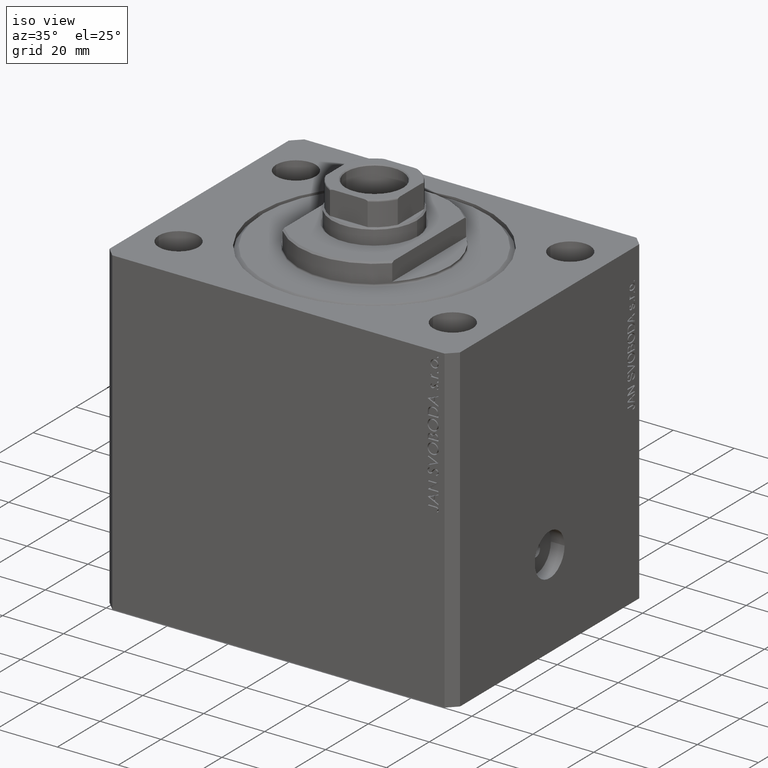
[diagram: clean part render]
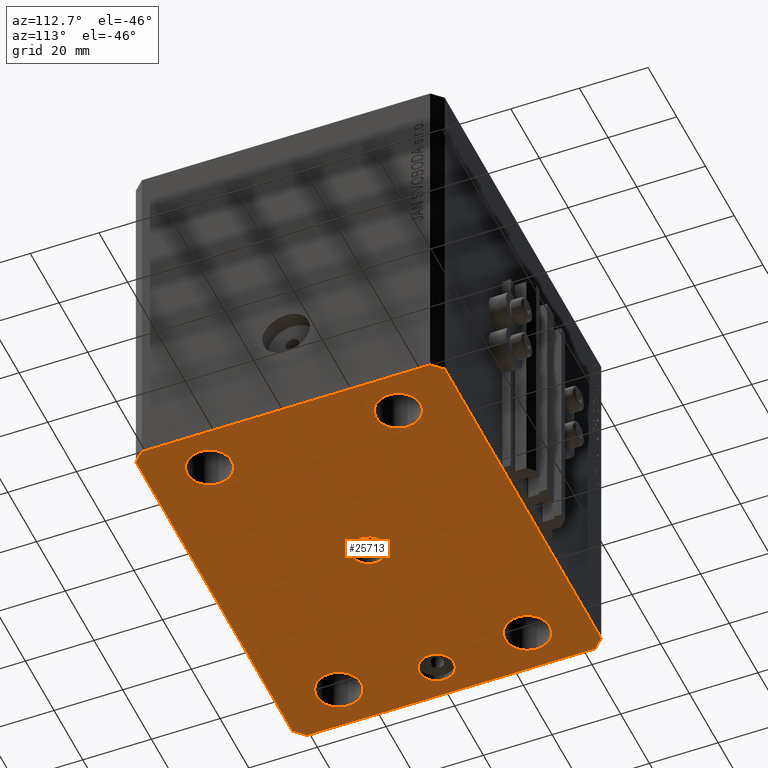
[diagram: tour spotlight — one face highlighted and labeled with its STEP entity id]
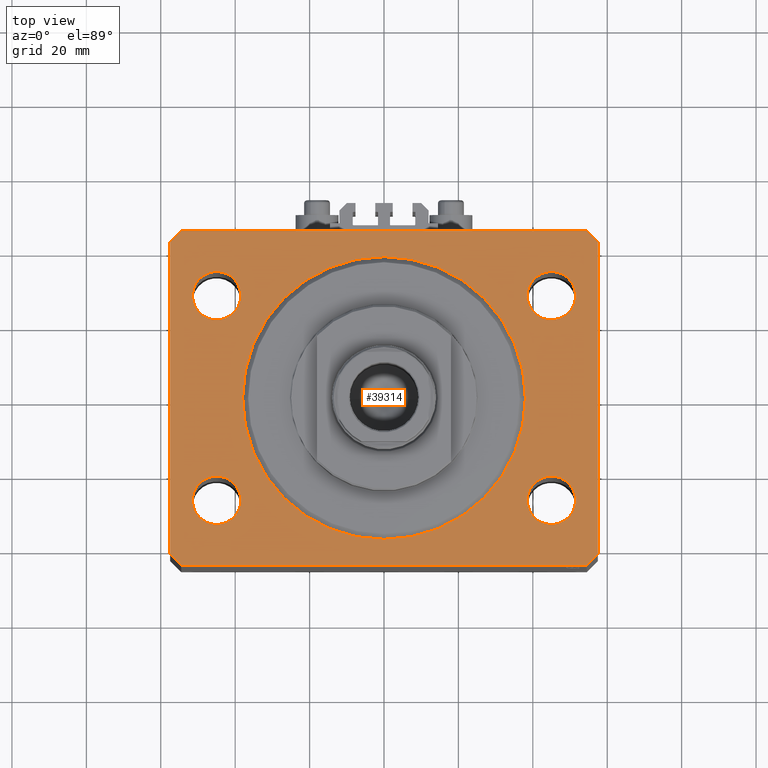
[diagram: tour spotlight — one face highlighted and labeled with its STEP entity id]
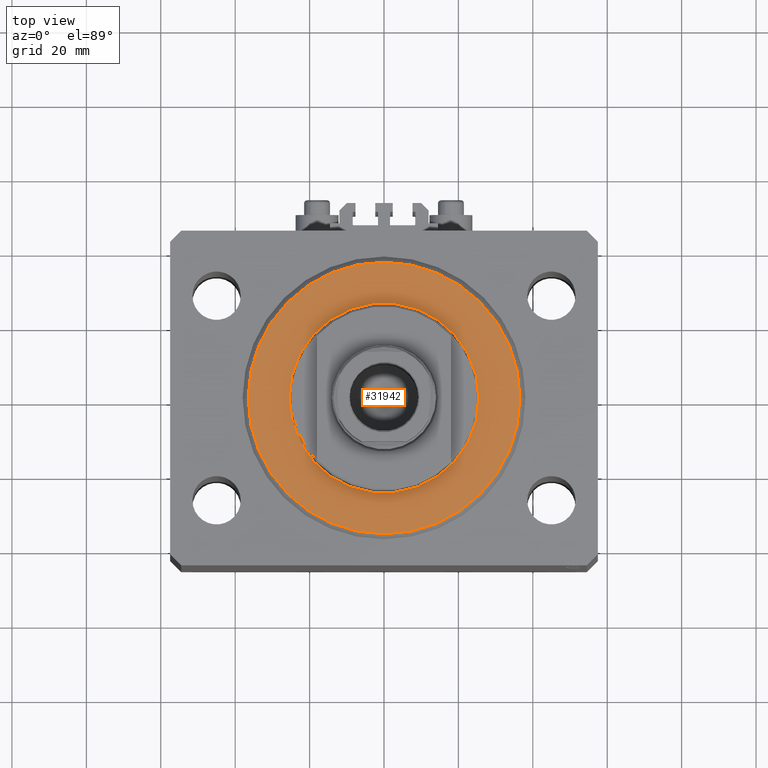
[diagram: tour spotlight — one face highlighted and labeled with its STEP entity id]
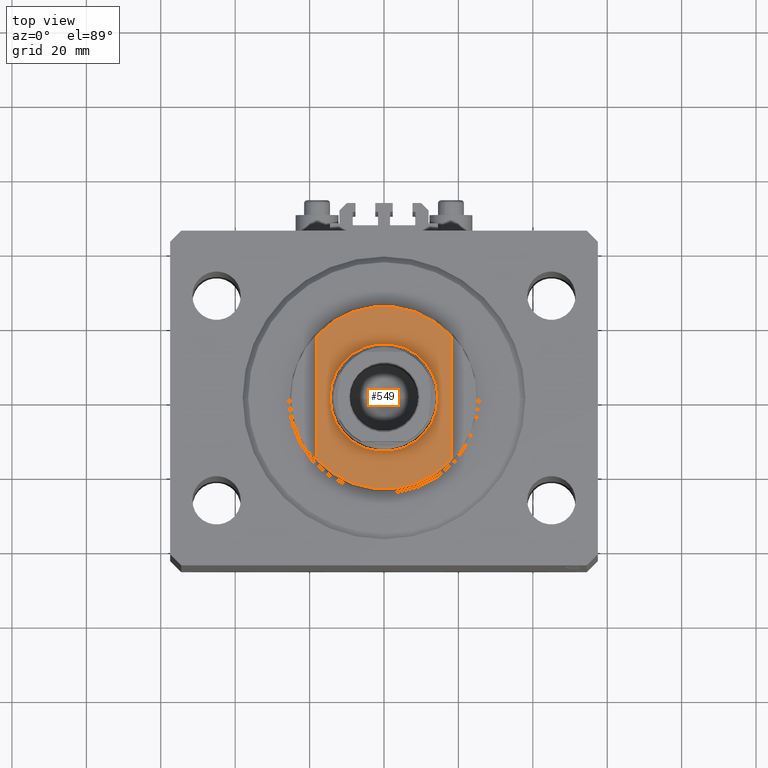
[diagram: tour spotlight — one face highlighted and labeled with its STEP entity id]
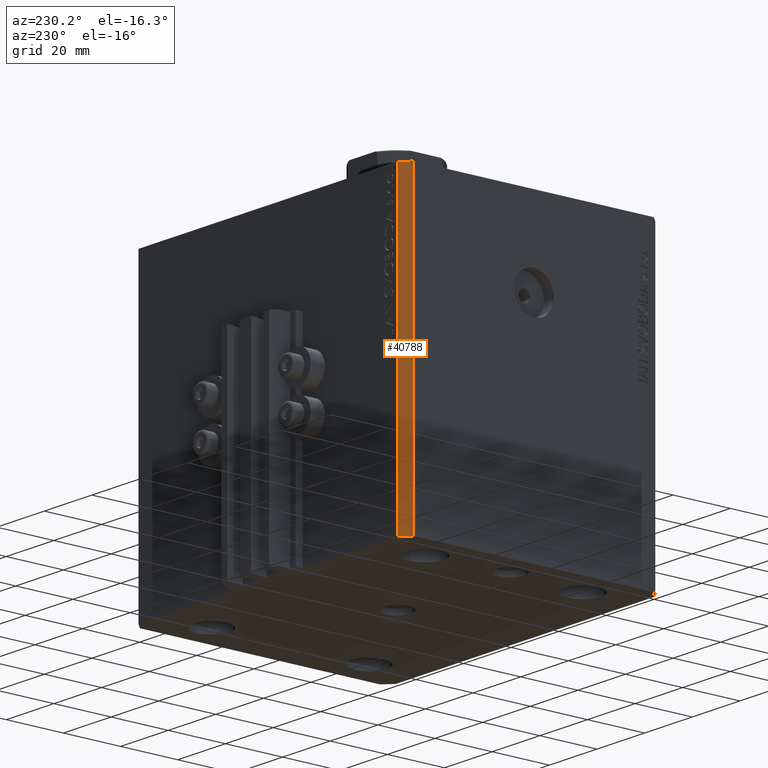
[diagram: tour spotlight — one face highlighted and labeled with its STEP entity id]
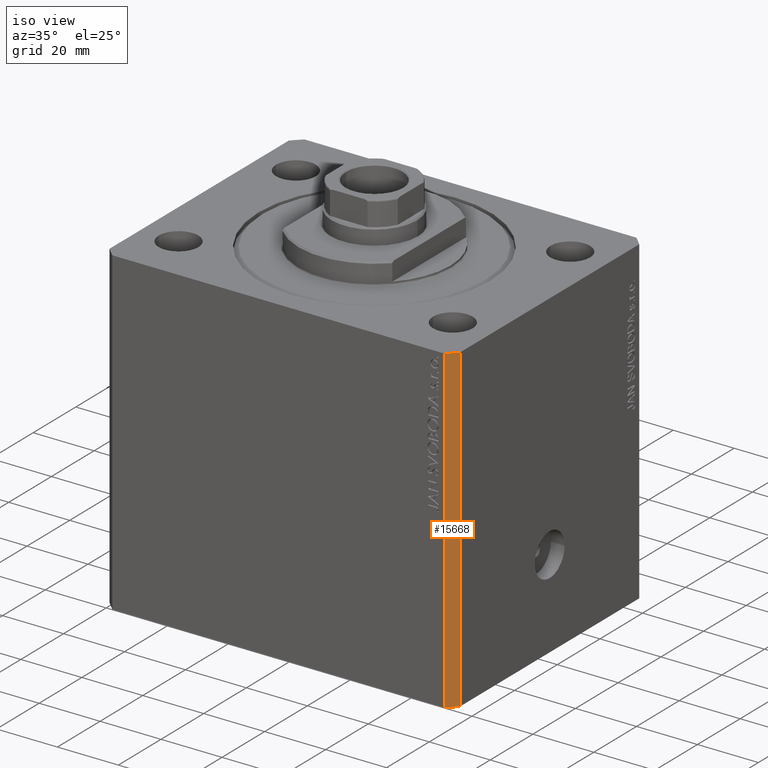
[diagram: tour spotlight — one face highlighted and labeled with its STEP entity id]
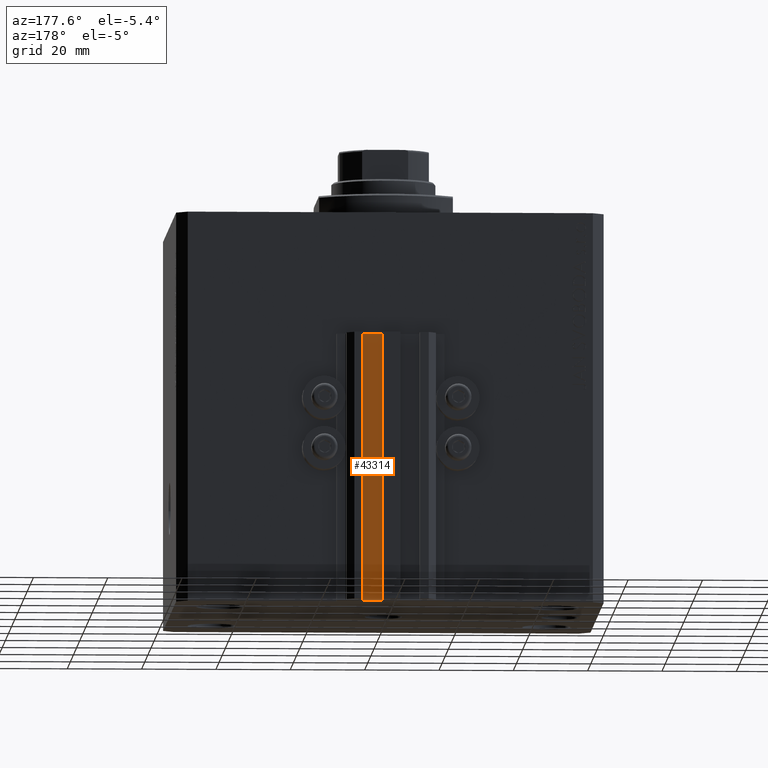
[diagram: tour spotlight — one face highlighted and labeled with its STEP entity id]
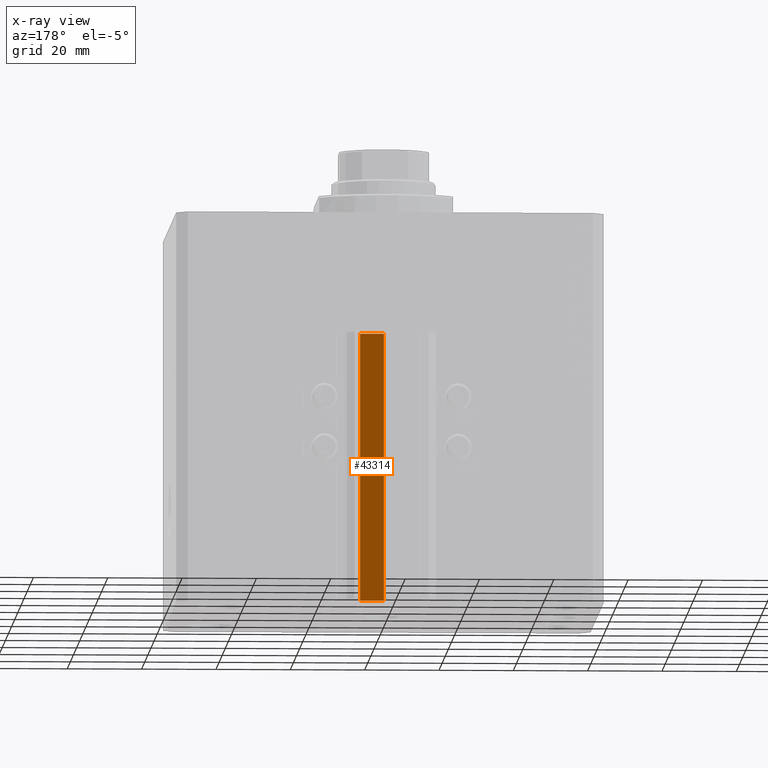
[diagram: x-ray of the same camera — body ghosted, this tour face saturated]
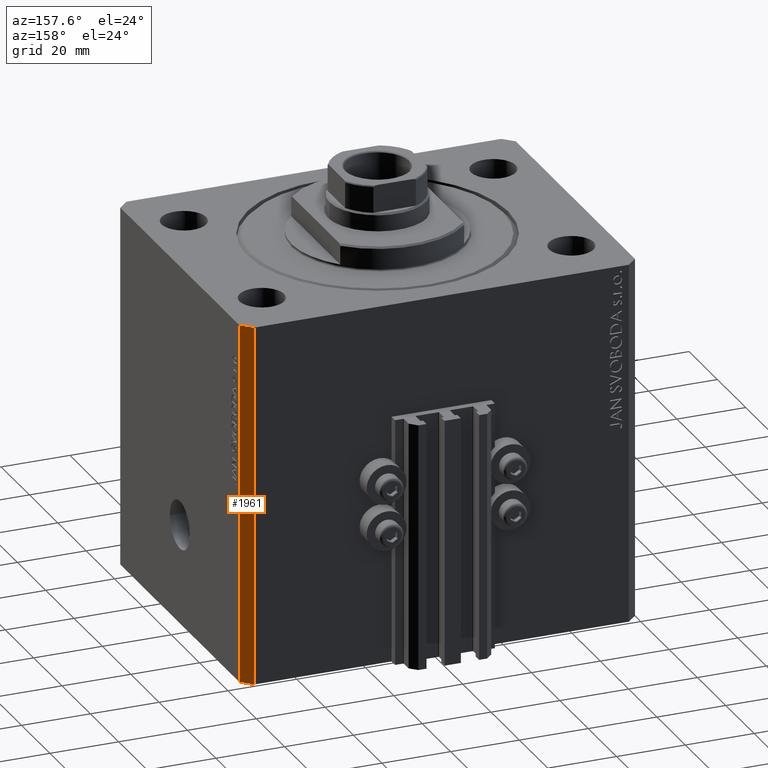
[diagram: tour spotlight — one face highlighted and labeled with its STEP entity id]
A machine part: a face-by-face anatomy tour. The part has 1038 B-rep faces; the first image is the clean iso view, then the 8 largest visible faces are spotlighted one at a time (largest first), each with its STEP entity span.

Face 1 — auxiliary view, entity #25713. In plain terms, the highlighted planar face has unit normal (0, 0, 1).
Definition (entity closure, byte-faithful):
#90 = VERTEX_POINT ( 'NONE', #31014 ) ;
#110 = LINE ( 'NONE', #32648, #25802 ) ;
#496 = ORIENTED_EDGE ( 'NONE', *, *, #9426, .F. ) ;
#835 = EDGE_LOOP ( 'NONE', ( #23896, #39764 ) ) ;
#1276 = VERTEX_POINT ( 'NONE', #17092 ) ;
#1497 = CARTESIAN_POINT ( 'NONE',  ( 45.00000000000000000, 27.49999999999999289, -105.0000000000000000 ) ) ;
#1703 = AXIS2_PLACEMENT_3D ( 'NONE', #26701, #36770, #44189 ) ;
#1907 = LINE ( 'NONE', #11736, #9404 ) ;
#2470 = CARTESIAN_POINT ( 'NONE',  ( 54.50000000000059686, 45.00000000000002842, -105.0000000000000000 ) ) ;
#2614 = AXIS2_PLACEMENT_3D ( 'NONE', #31490, #12853, #27657 ) ;
#2830 = VERTEX_POINT ( 'NONE', #37894 ) ;
#3100 = VERTEX_POINT ( 'NONE', #26594 ) ;
#3118 = EDGE_LOOP ( 'NONE', ( #10600, #496 ) ) ;
#4034 = DIRECTION ( 'NONE',  ( 1.000000000000000000, 0.000000000000000000, 0.000000000000000000 ) ) ;
#4316 = CARTESIAN_POINT ( 'NONE',  ( -38.49999999999998579, -27.50000000000000355, -105.0000000000000000 ) ) ;
#4811 = EDGE_CURVE ( 'NONE', #6489, #37384, #15976, .T. ) ;
#4868 = EDGE_LOOP ( 'NONE', ( #35417, #25844 ) ) ;
#4884 = EDGE_CURVE ( 'NONE', #90, #12498, #9494, .T. ) ;
#5265 = DIRECTION ( 'NONE',  ( -0.7071067811865483499, -0.7071067811865466846, 0.000000000000000000 ) ) ;
#5298 = ORIENTED_EDGE ( 'NONE', *, *, #35319, .F. ) ;
#5896 = VERTEX_POINT ( 'NONE', #6761 ) ;
#6069 = AXIS2_PLACEMENT_3D ( 'NONE', #10131, #24706, #6526 ) ;
#6122 = CARTESIAN_POINT ( 'NONE',  ( 57.50000000000055422, 41.99999999999997868, -105.0000000000000000 ) ) ;
#6259 = EDGE_CURVE ( 'NONE', #1276, #28880, #36060, .T. ) ;
#6489 = VERTEX_POINT ( 'NONE', #8537 ) ;
#6526 = DIRECTION ( 'NONE',  ( 1.000000000000000000, 0.000000000000000000, 0.000000000000000000 ) ) ;
#6761 = CARTESIAN_POINT ( 'NONE',  ( 5.000000000000000000, 6.123233995736765296E-16, -105.0000000000000000 ) ) ;
#6878 = EDGE_LOOP ( 'NONE', ( #18062, #5298 ) ) ;
#7498 = ORIENTED_EDGE ( 'NONE', *, *, #37780, .F. ) ;
#7503 = VECTOR ( 'NONE', #20485, 1000.000000000000000 ) ;
#8117 = EDGE_CURVE ( 'NONE', #3100, #13271, #27432, .T. ) ;
#8537 = CARTESIAN_POINT ( 'NONE',  ( 57.50000000000000711, -41.99999999999998579, -105.0000000000000000 ) ) ;
#8562 = CARTESIAN_POINT ( 'NONE',  ( -44.99999999999998579, -27.50000000000000355, -105.0000000000000000 ) ) ;
#8680 = DIRECTION ( 'NONE',  ( -0.000000000000000000, -0.000000000000000000, -1.000000000000000000 ) ) ;
#9037 = DIRECTION ( 'NONE',  ( 0.000000000000000000, 0.000000000000000000, -1.000000000000000000 ) ) ;
#9098 = CARTESIAN_POINT ( 'NONE',  ( 54.50000000000000711, -44.99999999999998579, -105.0000000000000000 ) ) ;
#9325 = CIRCLE ( 'NONE', #1703, 4.999999999999997335 ) ;
#9404 = VECTOR ( 'NONE', #5265, 1000.000000000000000 ) ;
#9426 = EDGE_CURVE ( 'NONE', #29794, #2830, #26798, .T. ) ;
#9494 = LINE ( 'NONE', #24069, #7503 ) ;
#10131 = CARTESIAN_POINT ( 'NONE',  ( 45.00000000000000000, 27.49999999999999289, -105.0000000000000000 ) ) ;
#10416 = DIRECTION ( 'NONE',  ( 0.7071067811865483499, 0.7071067811865466846, 0.000000000000000000 ) ) ;
#10600 = ORIENTED_EDGE ( 'NONE', *, *, #38952, .F. ) ;
#10640 = DIRECTION ( 'NONE',  ( -0.000000000000000000, -0.000000000000000000, -1.000000000000000000 ) ) ;
#11255 = ORIENTED_EDGE ( 'NONE', *, *, #40177, .F. ) ;
#11736 = CARTESIAN_POINT ( 'NONE',  ( -54.49999999999999289, 45.00000000000000000, -105.0000000000000000 ) ) ;
#11941 = AXIS2_PLACEMENT_3D ( 'NONE', #27665, #9037, #34392 ) ;
#12498 = VERTEX_POINT ( 'NONE', #9098 ) ;
#12853 = DIRECTION ( 'NONE',  ( 0.000000000000000000, 0.000000000000000000, -1.000000000000000000 ) ) ;
#13200 = AXIS2_PLACEMENT_3D ( 'NONE', #33459, #32979, #25326 ) ;
#13271 = VERTEX_POINT ( 'NONE', #24145 ) ;
#13385 = AXIS2_PLACEMENT_3D ( 'NONE', #29017, #17300, #17771 ) ;
#13426 = CIRCLE ( 'NONE', #27166, 6.499999999999999112 ) ;
#13960 = FACE_BOUND ( 'NONE', #6878, .T. ) ;
#14194 = FACE_BOUND ( 'NONE', #27136, .T. ) ;
#14813 = DIRECTION ( 'NONE',  ( -0.000000000000000000, -0.000000000000000000, -1.000000000000000000 ) ) ;
#14824 = EDGE_CURVE ( 'NONE', #5896, #33115, #39139, .T. ) ;
#14924 = EDGE_CURVE ( 'NONE', #37384, #33877, #34870, .T. ) ;
#15509 = DIRECTION ( 'NONE',  ( -0.000000000000000000, -0.000000000000000000, -1.000000000000000000 ) ) ;
#15696 = CARTESIAN_POINT ( 'NONE',  ( 54.50000000000059686, 45.00000000000002842, -105.0000000000000000 ) ) ;
#15872 = DIRECTION ( 'NONE',  ( 0.7071067811865491270, -0.7071067811865459074, 0.000000000000000000 ) ) ;
#15976 = LINE ( 'NONE', #30553, #42648 ) ;
#16366 = VERTEX_POINT ( 'NONE', #35167 ) ;
#16699 = VECTOR ( 'NONE', #45794, 1000.000000000000000 ) ;
#17008 = CIRCLE ( 'NONE', #26186, 6.499999999999999112 ) ;
#17092 = CARTESIAN_POINT ( 'NONE',  ( -57.49999999999998579, 42.00000000000000711, -105.0000000000000000 ) ) ;
#17300 = DIRECTION ( 'NONE',  ( 0.000000000000000000, 0.000000000000000000, 1.000000000000000000 ) ) ;
#17410 = DIRECTION ( 'NONE',  ( -2.478176394252581141E-16, -1.000000000000000000, 0.000000000000000000 ) ) ;
#17697 = EDGE_CURVE ( 'NONE', #32124, #34504, #9325, .T. ) ;
#17771 = DIRECTION ( 'NONE',  ( 1.000000000000000000, 0.000000000000000000, -0.000000000000000000 ) ) ;
#17995 = ORIENTED_EDGE ( 'NONE', *, *, #6259, .F. ) ;
#18003 = ORIENTED_EDGE ( 'NONE', *, *, #4884, .F. ) ;
#18057 = CIRCLE ( 'NONE', #40189, 6.499999999999999112 ) ;
#18062 = ORIENTED_EDGE ( 'NONE', *, *, #32455, .F. ) ;
#18108 = CARTESIAN_POINT ( 'NONE',  ( -51.50000000000000000, 27.49999999999999645, -105.0000000000000000 ) ) ;
#18584 = EDGE_CURVE ( 'NONE', #26705, #32142, #17008, .T. ) ;
#18904 = CARTESIAN_POINT ( 'NONE',  ( -42.50000000000000000, 6.123233995736762338E-16, -105.0000000000000000 ) ) ;
#19198 = DIRECTION ( 'NONE',  ( 1.000000000000000000, 0.000000000000000000, 0.000000000000000000 ) ) ;
#19319 = DIRECTION ( 'NONE',  ( 1.000000000000000000, 0.000000000000000000, 0.000000000000000000 ) ) ;
#19352 = ORIENTED_EDGE ( 'NONE', *, *, #28752, .F. ) ;
#20216 = EDGE_CURVE ( 'NONE', #44049, #1276, #1907, .T. ) ;
#20485 = DIRECTION ( 'NONE',  ( 1.000000000000000000, 1.273191542001326317E-16, 0.000000000000000000 ) ) ;
#21826 = FACE_BOUND ( 'NONE', #4868, .T. ) ;
#22725 = CIRCLE ( 'NONE', #38783, 6.499999999999999112 ) ;
#23328 = ORIENTED_EDGE ( 'NONE', *, *, #20216, .F. ) ;
#23336 = ORIENTED_EDGE ( 'NONE', *, *, #4811, .F. ) ;
#23669 = EDGE_CURVE ( 'NONE', #33115, #5896, #33940, .T. ) ;
#23852 = CARTESIAN_POINT ( 'NONE',  ( 44.99999999999998579, -27.50000000000000355, -105.0000000000000000 ) ) ;
#23896 = ORIENTED_EDGE ( 'NONE', *, *, #43216, .F. ) ;
#23983 = CARTESIAN_POINT ( 'NONE',  ( -57.50000000000000711, -42.00000000000000711, -105.0000000000000000 ) ) ;
#24069 = CARTESIAN_POINT ( 'NONE',  ( -54.50000000000000711, -45.00000000000000000, -105.0000000000000000 ) ) ;
#24145 = CARTESIAN_POINT ( 'NONE',  ( 38.50000000000000000, 27.49999999999999289, -105.0000000000000000 ) ) ;
#24706 = DIRECTION ( 'NONE',  ( -0.000000000000000000, -0.000000000000000000, -1.000000000000000000 ) ) ;
#24793 = DIRECTION ( 'NONE',  ( -0.7071067811865369146, 0.7071067811865581199, 0.000000000000000000 ) ) ;
#25326 = DIRECTION ( 'NONE',  ( -1.000000000000000000, 0.000000000000000000, 0.000000000000000000 ) ) ;
#25713 = ADVANCED_FACE ( 'NONE', ( #21826, #39788, #40026, #13960, #14194, #32840, #46965 ), #42901, .F. ) ;
#25802 = VECTOR ( 'NONE', #10416, 1000.000000000000000 ) ;
#25844 = ORIENTED_EDGE ( 'NONE', *, *, #14824, .F. ) ;
#26154 = LINE ( 'NONE', #40763, #26448 ) ;
#26186 = AXIS2_PLACEMENT_3D ( 'NONE', #47140, #36357, #33485 ) ;
#26448 = VECTOR ( 'NONE', #15872, 1000.000000000000114 ) ;
#26594 = CARTESIAN_POINT ( 'NONE',  ( 51.50000000000000000, 27.49999999999999289, -105.0000000000000000 ) ) ;
#26701 = CARTESIAN_POINT ( 'NONE',  ( -47.50000000000000000, 0.000000000000000000, -105.0000000000000000 ) ) ;
#26705 = VERTEX_POINT ( 'NONE', #32607 ) ;
#26798 = CIRCLE ( 'NONE', #32164, 6.499999999999999112 ) ;
#27136 = EDGE_LOOP ( 'NONE', ( #29058, #11255 ) ) ;
#27166 = AXIS2_PLACEMENT_3D ( 'NONE', #8562, #15509, #19319 ) ;
#27202 = DIRECTION ( 'NONE',  ( -0.000000000000000000, -0.000000000000000000, -1.000000000000000000 ) ) ;
#27432 = CIRCLE ( 'NONE', #44247, 6.499999999999999112 ) ;
#27437 = CIRCLE ( 'NONE', #6069, 6.499999999999999112 ) ;
#27657 = DIRECTION ( 'NONE',  ( -1.000000000000000000, 0.000000000000000000, 0.000000000000000000 ) ) ;
#27665 = CARTESIAN_POINT ( 'NONE',  ( -47.50000000000000000, 0.000000000000000000, -105.0000000000000000 ) ) ;
#27813 = ORIENTED_EDGE ( 'NONE', *, *, #17697, .F. ) ;
#28037 = CARTESIAN_POINT ( 'NONE',  ( -5.000000000000000000, 0.000000000000000000, -105.0000000000000000 ) ) ;
#28752 = EDGE_CURVE ( 'NONE', #28880, #90, #26154, .T. ) ;
#28767 = ORIENTED_EDGE ( 'NONE', *, *, #36745, .F. ) ;
#28880 = VERTEX_POINT ( 'NONE', #23983 ) ;
#29017 = CARTESIAN_POINT ( 'NONE',  ( 0.000000000000000000, 0.000000000000000000, -105.0000000000000000 ) ) ;
#29058 = ORIENTED_EDGE ( 'NONE', *, *, #8117, .F. ) ;
#29794 = VERTEX_POINT ( 'NONE', #18108 ) ;
#29988 = EDGE_LOOP ( 'NONE', ( #7498, #30266, #23336, #28767, #18003, #19352, #17995, #23328 ) ) ;
#30266 = ORIENTED_EDGE ( 'NONE', *, *, #14924, .F. ) ;
#30553 = CARTESIAN_POINT ( 'NONE',  ( 57.50000000000000711, -41.99999999999998579, -105.0000000000000000 ) ) ;
#30641 = DIRECTION ( 'NONE',  ( -0.000000000000000000, -0.000000000000000000, -1.000000000000000000 ) ) ;
#31014 = CARTESIAN_POINT ( 'NONE',  ( -54.50000000000000711, -45.00000000000000000, -105.0000000000000000 ) ) ;
#31490 = CARTESIAN_POINT ( 'NONE',  ( 0.000000000000000000, 0.000000000000000000, -105.0000000000000000 ) ) ;
#31657 = LINE ( 'NONE', #2470, #16699 ) ;
#32124 = VERTEX_POINT ( 'NONE', #18904 ) ;
#32142 = VERTEX_POINT ( 'NONE', #4316 ) ;
#32164 = AXIS2_PLACEMENT_3D ( 'NONE', #44691, #27202, #38223 ) ;
#32452 = EDGE_CURVE ( 'NONE', #34504, #32124, #37140, .T. ) ;
#32455 = EDGE_CURVE ( 'NONE', #16366, #36564, #18057, .T. ) ;
#32607 = CARTESIAN_POINT ( 'NONE',  ( -51.49999999999998579, -27.50000000000000355, -105.0000000000000000 ) ) ;
#32648 = CARTESIAN_POINT ( 'NONE',  ( 54.50000000000000711, -44.99999999999998579, -105.0000000000000000 ) ) ;
#32840 = FACE_BOUND ( 'NONE', #3118, .T. ) ;
#32979 = DIRECTION ( 'NONE',  ( 0.000000000000000000, 0.000000000000000000, -1.000000000000000000 ) ) ;
#33115 = VERTEX_POINT ( 'NONE', #28037 ) ;
#33213 = CARTESIAN_POINT ( 'NONE',  ( 44.99999999999998579, -27.50000000000000355, -105.0000000000000000 ) ) ;
#33459 = CARTESIAN_POINT ( 'NONE',  ( 0.000000000000000000, 0.000000000000000000, -105.0000000000000000 ) ) ;
#33485 = DIRECTION ( 'NONE',  ( 1.000000000000000000, 0.000000000000000000, 0.000000000000000000 ) ) ;
#33877 = VERTEX_POINT ( 'NONE', #15696 ) ;
#33940 = CIRCLE ( 'NONE', #2614, 5.000000000000000000 ) ;
#34392 = DIRECTION ( 'NONE',  ( -1.000000000000000000, 0.000000000000000000, 0.000000000000000000 ) ) ;
#34504 = VERTEX_POINT ( 'NONE', #40124 ) ;
#34870 = LINE ( 'NONE', #42759, #45254 ) ;
#34944 = DIRECTION ( 'NONE',  ( 1.000000000000000000, 0.000000000000000000, 0.000000000000000000 ) ) ;
#35167 = CARTESIAN_POINT ( 'NONE',  ( 51.49999999999998579, -27.50000000000000355, -105.0000000000000000 ) ) ;
#35319 = EDGE_CURVE ( 'NONE', #36564, #16366, #22725, .T. ) ;
#35417 = ORIENTED_EDGE ( 'NONE', *, *, #23669, .F. ) ;
#36060 = LINE ( 'NONE', #46355, #40364 ) ;
#36357 = DIRECTION ( 'NONE',  ( -0.000000000000000000, -0.000000000000000000, -1.000000000000000000 ) ) ;
#36564 = VERTEX_POINT ( 'NONE', #43482 ) ;
#36745 = EDGE_CURVE ( 'NONE', #12498, #6489, #110, .T. ) ;
#36770 = DIRECTION ( 'NONE',  ( 0.000000000000000000, 0.000000000000000000, -1.000000000000000000 ) ) ;
#37140 = CIRCLE ( 'NONE', #11941, 4.999999999999997335 ) ;
#37336 = CARTESIAN_POINT ( 'NONE',  ( -54.49999999999999289, 45.00000000000000000, -105.0000000000000000 ) ) ;
#37384 = VERTEX_POINT ( 'NONE', #6122 ) ;
#37780 = EDGE_CURVE ( 'NONE', #33877, #44049, #31657, .T. ) ;
#37894 = CARTESIAN_POINT ( 'NONE',  ( -38.50000000000000000, 27.49999999999999645, -105.0000000000000000 ) ) ;
#38223 = DIRECTION ( 'NONE',  ( 1.000000000000000000, 0.000000000000000000, 0.000000000000000000 ) ) ;
#38530 = CARTESIAN_POINT ( 'NONE',  ( -45.00000000000000000, 27.49999999999999645, -105.0000000000000000 ) ) ;
#38783 = AXIS2_PLACEMENT_3D ( 'NONE', #33213, #14813, #4034 ) ;
#38952 = EDGE_CURVE ( 'NONE', #2830, #29794, #42719, .T. ) ;
#39139 = CIRCLE ( 'NONE', #13200, 5.000000000000000000 ) ;
#39182 = EDGE_LOOP ( 'NONE', ( #40757, #27813 ) ) ;
#39764 = ORIENTED_EDGE ( 'NONE', *, *, #18584, .F. ) ;
#39788 = FACE_BOUND ( 'NONE', #39182, .T. ) ;
#40026 = FACE_BOUND ( 'NONE', #835, .T. ) ;
#40124 = CARTESIAN_POINT ( 'NONE',  ( -52.50000000000000000, 0.000000000000000000, -105.0000000000000000 ) ) ;
#40177 = EDGE_CURVE ( 'NONE', #13271, #3100, #27437, .T. ) ;
#40189 = AXIS2_PLACEMENT_3D ( 'NONE', #23852, #10640, #46747 ) ;
#40364 = VECTOR ( 'NONE', #17410, 1000.000000000000000 ) ;
#40757 = ORIENTED_EDGE ( 'NONE', *, *, #32452, .F. ) ;
#40763 = CARTESIAN_POINT ( 'NONE',  ( -57.50000000000000711, -42.00000000000000711, -105.0000000000000000 ) ) ;
#42648 = VECTOR ( 'NONE', #45148, 1000.000000000000000 ) ;
#42719 = CIRCLE ( 'NONE', #43471, 6.499999999999999112 ) ;
#42759 = CARTESIAN_POINT ( 'NONE',  ( 57.50000000000055422, 41.99999999999997868, -105.0000000000000000 ) ) ;
#42901 = PLANE ( 'NONE',  #13385 ) ;
#43216 = EDGE_CURVE ( 'NONE', #32142, #26705, #13426, .T. ) ;
#43471 = AXIS2_PLACEMENT_3D ( 'NONE', #38530, #30641, #34944 ) ;
#43482 = CARTESIAN_POINT ( 'NONE',  ( 38.49999999999998579, -27.50000000000000355, -105.0000000000000000 ) ) ;
#44049 = VERTEX_POINT ( 'NONE', #37336 ) ;
#44189 = DIRECTION ( 'NONE',  ( -1.000000000000000000, 0.000000000000000000, 0.000000000000000000 ) ) ;
#44247 = AXIS2_PLACEMENT_3D ( 'NONE', #1497, #8680, #19198 ) ;
#44691 = CARTESIAN_POINT ( 'NONE',  ( -45.00000000000000000, 27.49999999999999645, -105.0000000000000000 ) ) ;
#45148 = DIRECTION ( 'NONE',  ( 6.443258625056715108E-15, 1.000000000000000000, 0.000000000000000000 ) ) ;
#45254 = VECTOR ( 'NONE', #24793, 1000.000000000000000 ) ;
#45794 = DIRECTION ( 'NONE',  ( -1.000000000000000000, -2.546383084002638829E-16, 0.000000000000000000 ) ) ;
#46355 = CARTESIAN_POINT ( 'NONE',  ( -57.49999999999998579, 42.00000000000000711, -105.0000000000000000 ) ) ;
#46747 = DIRECTION ( 'NONE',  ( 1.000000000000000000, 0.000000000000000000, 0.000000000000000000 ) ) ;
#46965 = FACE_OUTER_BOUND ( 'NONE', #29988, .T. ) ;
#47140 = CARTESIAN_POINT ( 'NONE',  ( -44.99999999999998579, -27.50000000000000355, -105.0000000000000000 ) ) ;

Face 2 — top view, entity #39314. In plain terms, the highlighted planar face has unit normal (0, 0, 1).
Definition (entity closure, byte-faithful):
#58 = DIRECTION ( 'NONE',  ( 1.000000000000000000, 0.000000000000000000, 0.000000000000000000 ) ) ;
#663 = CIRCLE ( 'NONE', #14444, 38.00000000000000000 ) ;
#793 = EDGE_LOOP ( 'NONE', ( #19029, #19124 ) ) ;
#894 = VERTEX_POINT ( 'NONE', #23850 ) ;
#1451 = CIRCLE ( 'NONE', #10618, 38.00000000000000000 ) ;
#1526 = DIRECTION ( 'NONE',  ( 0.000000000000000000, 0.000000000000000000, 1.000000000000000000 ) ) ;
#2078 = AXIS2_PLACEMENT_3D ( 'NONE', #41636, #8864, #23448 ) ;
#3078 = ORIENTED_EDGE ( 'NONE', *, *, #30140, .T. ) ;
#3169 = DIRECTION ( 'NONE',  ( 0.000000000000000000, 0.000000000000000000, 1.000000000000000000 ) ) ;
#3187 = DIRECTION ( 'NONE',  ( 6.443258625056715108E-15, 1.000000000000000000, 0.000000000000000000 ) ) ;
#4153 = DIRECTION ( 'NONE',  ( 0.000000000000000000, 0.000000000000000000, 1.000000000000000000 ) ) ;
#4423 = AXIS2_PLACEMENT_3D ( 'NONE', #5425, #16680, #42271 ) ;
#4606 = DIRECTION ( 'NONE',  ( 0.7071067811865483499, 0.7071067811865466846, 0.000000000000000000 ) ) ;
#4668 = CARTESIAN_POINT ( 'NONE',  ( -57.50000000000000711, -42.00000000000000711, 0.000000000000000000 ) ) ;
#4867 = EDGE_CURVE ( 'NONE', #6571, #894, #34238, .T. ) ;
#5064 = EDGE_LOOP ( 'NONE', ( #28133, #37918 ) ) ;
#5114 = PLANE ( 'NONE',  #5250 ) ;
#5250 = AXIS2_PLACEMENT_3D ( 'NONE', #34305, #1526, #31418 ) ;
#5425 = CARTESIAN_POINT ( 'NONE',  ( 45.00000000000000000, 27.49999999999999289, 0.000000000000000000 ) ) ;
#6028 = CIRCLE ( 'NONE', #9863, 6.499999999999999112 ) ;
#6390 = CARTESIAN_POINT ( 'NONE',  ( -57.50000000000000711, -42.00000000000000711, 0.000000000000000000 ) ) ;
#6571 = VERTEX_POINT ( 'NONE', #39359 ) ;
#6836 = EDGE_CURVE ( 'NONE', #33069, #43196, #663, .T. ) ;
#7047 = CARTESIAN_POINT ( 'NONE',  ( -54.50000000000000711, -45.00000000000000000, 0.000000000000000000 ) ) ;
#7295 = EDGE_CURVE ( 'NONE', #43196, #33069, #1451, .T. ) ;
#7403 = VECTOR ( 'NONE', #4606, 1000.000000000000000 ) ;
#7839 = EDGE_CURVE ( 'NONE', #36843, #14483, #6028, .T. ) ;
#8332 = CIRCLE ( 'NONE', #35072, 6.499999999999999112 ) ;
#8671 = CARTESIAN_POINT ( 'NONE',  ( -38.50000000000000000, 27.49999999999999645, 0.000000000000000000 ) ) ;
#8705 = ORIENTED_EDGE ( 'NONE', *, *, #34056, .T. ) ;
#8864 = DIRECTION ( 'NONE',  ( 0.000000000000000000, 0.000000000000000000, 1.000000000000000000 ) ) ;
#9655 = FACE_BOUND ( 'NONE', #46827, .T. ) ;
#9863 = AXIS2_PLACEMENT_3D ( 'NONE', #36668, #40027, #58 ) ;
#9934 = EDGE_CURVE ( 'NONE', #45692, #25982, #30625, .T. ) ;
#10466 = EDGE_LOOP ( 'NONE', ( #27179, #18361 ) ) ;
#10559 = EDGE_CURVE ( 'NONE', #19664, #12980, #39171, .T. ) ;
#10618 = AXIS2_PLACEMENT_3D ( 'NONE', #31248, #20233, #16667 ) ;
#10889 = LINE ( 'NONE', #25466, #21500 ) ;
#11107 = ORIENTED_EDGE ( 'NONE', *, *, #11237, .T. ) ;
#11237 = EDGE_CURVE ( 'NONE', #19308, #38833, #14681, .T. ) ;
#12798 = ORIENTED_EDGE ( 'NONE', *, *, #6836, .F. ) ;
#12980 = VERTEX_POINT ( 'NONE', #45766 ) ;
#14368 = DIRECTION ( 'NONE',  ( 0.000000000000000000, 0.000000000000000000, 1.000000000000000000 ) ) ;
#14387 = EDGE_CURVE ( 'NONE', #25639, #19214, #38392, .T. ) ;
#14444 = AXIS2_PLACEMENT_3D ( 'NONE', #36126, #36361, #39245 ) ;
#14475 = CARTESIAN_POINT ( 'NONE',  ( -44.99999999999998579, -27.50000000000000355, 0.000000000000000000 ) ) ;
#14483 = VERTEX_POINT ( 'NONE', #41691 ) ;
#14511 = ORIENTED_EDGE ( 'NONE', *, *, #28385, .T. ) ;
#14679 = LINE ( 'NONE', #43852, #46132 ) ;
#14681 = LINE ( 'NONE', #21364, #39328 ) ;
#15777 = VECTOR ( 'NONE', #29855, 1000.000000000000000 ) ;
#15811 = CARTESIAN_POINT ( 'NONE',  ( 54.50000000000000711, -44.99999999999998579, 0.000000000000000000 ) ) ;
#16600 = FACE_BOUND ( 'NONE', #5064, .T. ) ;
#16667 = DIRECTION ( 'NONE',  ( 1.000000000000000000, 0.000000000000000000, 0.000000000000000000 ) ) ;
#16680 = DIRECTION ( 'NONE',  ( 0.000000000000000000, 0.000000000000000000, 1.000000000000000000 ) ) ;
#16960 = EDGE_CURVE ( 'NONE', #41859, #22520, #10889, .T. ) ;
#18292 = DIRECTION ( 'NONE',  ( 1.000000000000000000, 1.273191542001326317E-16, 0.000000000000000000 ) ) ;
#18361 = ORIENTED_EDGE ( 'NONE', *, *, #9934, .F. ) ;
#18431 = ORIENTED_EDGE ( 'NONE', *, *, #23275, .T. ) ;
#18682 = EDGE_CURVE ( 'NONE', #25982, #45692, #22368, .T. ) ;
#19029 = ORIENTED_EDGE ( 'NONE', *, *, #39406, .F. ) ;
#19124 = ORIENTED_EDGE ( 'NONE', *, *, #14387, .F. ) ;
#19189 = CARTESIAN_POINT ( 'NONE',  ( 57.50000000000000711, -41.99999999999998579, 0.000000000000000000 ) ) ;
#19214 = VERTEX_POINT ( 'NONE', #8671 ) ;
#19308 = VERTEX_POINT ( 'NONE', #19189 ) ;
#19664 = VERTEX_POINT ( 'NONE', #4668 ) ;
#20233 = DIRECTION ( 'NONE',  ( 0.000000000000000000, 0.000000000000000000, 1.000000000000000000 ) ) ;
#20643 = FACE_BOUND ( 'NONE', #10466, .T. ) ;
#20974 = DIRECTION ( 'NONE',  ( 0.7071067811865491270, -0.7071067811865459074, 0.000000000000000000 ) ) ;
#21364 = CARTESIAN_POINT ( 'NONE',  ( 57.50000000000000711, -41.99999999999998579, 0.000000000000000000 ) ) ;
#21500 = VECTOR ( 'NONE', #22576, 1000.000000000000000 ) ;
#21688 = ORIENTED_EDGE ( 'NONE', *, *, #4867, .F. ) ;
#22227 = AXIS2_PLACEMENT_3D ( 'NONE', #14475, #43644, #26864 ) ;
#22368 = CIRCLE ( 'NONE', #30761, 6.499999999999999112 ) ;
#22461 = VECTOR ( 'NONE', #20974, 1000.000000000000114 ) ;
#22520 = VERTEX_POINT ( 'NONE', #32015 ) ;
#22576 = DIRECTION ( 'NONE',  ( -1.000000000000000000, -2.546383084002638829E-16, 0.000000000000000000 ) ) ;
#23275 = EDGE_CURVE ( 'NONE', #22520, #23593, #14679, .T. ) ;
#23310 = ORIENTED_EDGE ( 'NONE', *, *, #10559, .T. ) ;
#23448 = DIRECTION ( 'NONE',  ( 1.000000000000000000, 0.000000000000000000, 0.000000000000000000 ) ) ;
#23593 = VERTEX_POINT ( 'NONE', #23609 ) ;
#23609 = CARTESIAN_POINT ( 'NONE',  ( -57.49999999999998579, 42.00000000000000711, 0.000000000000000000 ) ) ;
#23750 = CARTESIAN_POINT ( 'NONE',  ( -38.00000000000000000, 4.653657836759941941E-15, 0.000000000000000000 ) ) ;
#23850 = CARTESIAN_POINT ( 'NONE',  ( 51.50000000000000000, 27.49999999999999289, 0.000000000000000000 ) ) ;
#24476 = CARTESIAN_POINT ( 'NONE',  ( -51.50000000000000000, 27.49999999999999645, 0.000000000000000000 ) ) ;
#25371 = AXIS2_PLACEMENT_3D ( 'NONE', #37396, #4153, #33336 ) ;
#25466 = CARTESIAN_POINT ( 'NONE',  ( 54.50000000000059686, 45.00000000000002842, 0.000000000000000000 ) ) ;
#25639 = VERTEX_POINT ( 'NONE', #24476 ) ;
#25693 = LINE ( 'NONE', #7047, #39498 ) ;
#25982 = VERTEX_POINT ( 'NONE', #30889 ) ;
#26723 = DIRECTION ( 'NONE',  ( 0.000000000000000000, 0.000000000000000000, 1.000000000000000000 ) ) ;
#26864 = DIRECTION ( 'NONE',  ( 1.000000000000000000, 0.000000000000000000, 0.000000000000000000 ) ) ;
#26954 = CARTESIAN_POINT ( 'NONE',  ( 45.00000000000000000, 27.49999999999999289, 0.000000000000000000 ) ) ;
#27107 = FACE_OUTER_BOUND ( 'NONE', #45815, .T. ) ;
#27179 = ORIENTED_EDGE ( 'NONE', *, *, #18682, .F. ) ;
#27349 = FACE_BOUND ( 'NONE', #793, .T. ) ;
#28105 = ORIENTED_EDGE ( 'NONE', *, *, #16960, .T. ) ;
#28133 = ORIENTED_EDGE ( 'NONE', *, *, #46636, .F. ) ;
#28187 = ORIENTED_EDGE ( 'NONE', *, *, #7295, .F. ) ;
#28245 = EDGE_LOOP ( 'NONE', ( #28187, #12798 ) ) ;
#28385 = EDGE_CURVE ( 'NONE', #38833, #41859, #29622, .T. ) ;
#29485 = LINE ( 'NONE', #40747, #7403 ) ;
#29564 = CIRCLE ( 'NONE', #2078, 6.499999999999999112 ) ;
#29622 = LINE ( 'NONE', #44928, #15777 ) ;
#29855 = DIRECTION ( 'NONE',  ( -0.7071067811865369146, 0.7071067811865581199, 0.000000000000000000 ) ) ;
#30140 = EDGE_CURVE ( 'NONE', #46544, #19308, #29485, .T. ) ;
#30625 = CIRCLE ( 'NONE', #22227, 6.499999999999999112 ) ;
#30761 = AXIS2_PLACEMENT_3D ( 'NONE', #44256, #14368, #32773 ) ;
#30889 = CARTESIAN_POINT ( 'NONE',  ( -38.49999999999998579, -27.50000000000000355, 0.000000000000000000 ) ) ;
#31126 = VECTOR ( 'NONE', #43170, 1000.000000000000000 ) ;
#31248 = CARTESIAN_POINT ( 'NONE',  ( 0.000000000000000000, 0.000000000000000000, 0.000000000000000000 ) ) ;
#31418 = DIRECTION ( 'NONE',  ( 1.000000000000000000, 0.000000000000000000, -0.000000000000000000 ) ) ;
#31447 = EDGE_CURVE ( 'NONE', #894, #6571, #31773, .T. ) ;
#31773 = CIRCLE ( 'NONE', #34857, 6.499999999999999112 ) ;
#31876 = CARTESIAN_POINT ( 'NONE',  ( 57.50000000000055422, 41.99999999999997868, 0.000000000000000000 ) ) ;
#32015 = CARTESIAN_POINT ( 'NONE',  ( -54.49999999999999289, 45.00000000000000000, 0.000000000000000000 ) ) ;
#32773 = DIRECTION ( 'NONE',  ( 1.000000000000000000, 0.000000000000000000, 0.000000000000000000 ) ) ;
#33069 = VERTEX_POINT ( 'NONE', #23750 ) ;
#33336 = DIRECTION ( 'NONE',  ( 1.000000000000000000, 0.000000000000000000, 0.000000000000000000 ) ) ;
#34056 = EDGE_CURVE ( 'NONE', #12980, #46544, #25693, .T. ) ;
#34238 = CIRCLE ( 'NONE', #4423, 6.499999999999999112 ) ;
#34305 = CARTESIAN_POINT ( 'NONE',  ( 0.000000000000000000, 0.000000000000000000, 0.000000000000000000 ) ) ;
#34429 = ORIENTED_EDGE ( 'NONE', *, *, #31447, .F. ) ;
#34857 = AXIS2_PLACEMENT_3D ( 'NONE', #26954, #26723, #41324 ) ;
#35072 = AXIS2_PLACEMENT_3D ( 'NONE', #35714, #3169, #40017 ) ;
#35455 = EDGE_CURVE ( 'NONE', #23593, #19664, #45404, .T. ) ;
#35474 = CARTESIAN_POINT ( 'NONE',  ( 54.50000000000059686, 45.00000000000002842, 0.000000000000000000 ) ) ;
#35714 = CARTESIAN_POINT ( 'NONE',  ( -45.00000000000000000, 27.49999999999999645, 0.000000000000000000 ) ) ;
#36126 = CARTESIAN_POINT ( 'NONE',  ( 0.000000000000000000, 0.000000000000000000, 0.000000000000000000 ) ) ;
#36361 = DIRECTION ( 'NONE',  ( 0.000000000000000000, 0.000000000000000000, 1.000000000000000000 ) ) ;
#36668 = CARTESIAN_POINT ( 'NONE',  ( 44.99999999999998579, -27.50000000000000355, 0.000000000000000000 ) ) ;
#36843 = VERTEX_POINT ( 'NONE', #39356 ) ;
#37396 = CARTESIAN_POINT ( 'NONE',  ( -45.00000000000000000, 27.49999999999999645, 0.000000000000000000 ) ) ;
#37889 = FACE_BOUND ( 'NONE', #28245, .T. ) ;
#37918 = ORIENTED_EDGE ( 'NONE', *, *, #7839, .F. ) ;
#38211 = CARTESIAN_POINT ( 'NONE',  ( 38.00000000000000000, 0.000000000000000000, 0.000000000000000000 ) ) ;
#38392 = CIRCLE ( 'NONE', #25371, 6.499999999999999112 ) ;
#38833 = VERTEX_POINT ( 'NONE', #31876 ) ;
#39171 = LINE ( 'NONE', #6390, #22461 ) ;
#39245 = DIRECTION ( 'NONE',  ( 1.000000000000000000, 0.000000000000000000, 0.000000000000000000 ) ) ;
#39314 = ADVANCED_FACE ( 'NONE', ( #37889, #20643, #16600, #9655, #27349, #27107 ), #5114, .T. ) ;
#39328 = VECTOR ( 'NONE', #3187, 1000.000000000000000 ) ;
#39356 = CARTESIAN_POINT ( 'NONE',  ( 38.49999999999998579, -27.50000000000000355, 0.000000000000000000 ) ) ;
#39359 = CARTESIAN_POINT ( 'NONE',  ( 38.50000000000000000, 27.49999999999999289, 0.000000000000000000 ) ) ;
#39406 = EDGE_CURVE ( 'NONE', #19214, #25639, #8332, .T. ) ;
#39498 = VECTOR ( 'NONE', #18292, 1000.000000000000000 ) ;
#39826 = CARTESIAN_POINT ( 'NONE',  ( -57.49999999999998579, 42.00000000000000711, 0.000000000000000000 ) ) ;
#40017 = DIRECTION ( 'NONE',  ( 1.000000000000000000, 0.000000000000000000, 0.000000000000000000 ) ) ;
#40027 = DIRECTION ( 'NONE',  ( 0.000000000000000000, 0.000000000000000000, 1.000000000000000000 ) ) ;
#40270 = DIRECTION ( 'NONE',  ( -0.7071067811865483499, -0.7071067811865466846, 0.000000000000000000 ) ) ;
#40747 = CARTESIAN_POINT ( 'NONE',  ( 54.50000000000000711, -44.99999999999998579, 0.000000000000000000 ) ) ;
#41324 = DIRECTION ( 'NONE',  ( 1.000000000000000000, 0.000000000000000000, 0.000000000000000000 ) ) ;
#41636 = CARTESIAN_POINT ( 'NONE',  ( 44.99999999999998579, -27.50000000000000355, 0.000000000000000000 ) ) ;
#41691 = CARTESIAN_POINT ( 'NONE',  ( 51.49999999999998579, -27.50000000000000355, 0.000000000000000000 ) ) ;
#41859 = VERTEX_POINT ( 'NONE', #35474 ) ;
#42271 = DIRECTION ( 'NONE',  ( 1.000000000000000000, 0.000000000000000000, 0.000000000000000000 ) ) ;
#42697 = ORIENTED_EDGE ( 'NONE', *, *, #35455, .T. ) ;
#42821 = CARTESIAN_POINT ( 'NONE',  ( -51.49999999999998579, -27.50000000000000355, 0.000000000000000000 ) ) ;
#43170 = DIRECTION ( 'NONE',  ( -2.478176394252581141E-16, -1.000000000000000000, 0.000000000000000000 ) ) ;
#43196 = VERTEX_POINT ( 'NONE', #38211 ) ;
#43644 = DIRECTION ( 'NONE',  ( 0.000000000000000000, 0.000000000000000000, 1.000000000000000000 ) ) ;
#43852 = CARTESIAN_POINT ( 'NONE',  ( -54.49999999999999289, 45.00000000000000000, 0.000000000000000000 ) ) ;
#44256 = CARTESIAN_POINT ( 'NONE',  ( -44.99999999999998579, -27.50000000000000355, 0.000000000000000000 ) ) ;
#44928 = CARTESIAN_POINT ( 'NONE',  ( 57.50000000000055422, 41.99999999999997868, 0.000000000000000000 ) ) ;
#45404 = LINE ( 'NONE', #39826, #31126 ) ;
#45692 = VERTEX_POINT ( 'NONE', #42821 ) ;
#45766 = CARTESIAN_POINT ( 'NONE',  ( -54.50000000000000711, -45.00000000000000000, 0.000000000000000000 ) ) ;
#45815 = EDGE_LOOP ( 'NONE', ( #28105, #18431, #42697, #23310, #8705, #3078, #11107, #14511 ) ) ;
#46132 = VECTOR ( 'NONE', #40270, 1000.000000000000000 ) ;
#46544 = VERTEX_POINT ( 'NONE', #15811 ) ;
#46636 = EDGE_CURVE ( 'NONE', #14483, #36843, #29564, .T. ) ;
#46827 = EDGE_LOOP ( 'NONE', ( #34429, #21688 ) ) ;

Face 3 — top view, entity #31942. In plain terms, the highlighted planar face has unit normal (0, 0, -1).
Definition (entity closure, byte-faithful):
#878 = CIRCLE ( 'NONE', #7000, 25.50000000000000355 ) ;
#1091 = CARTESIAN_POINT ( 'NONE',  ( 0.000000000000000000, 0.000000000000000000, 0.000000000000000000 ) ) ;
#1856 = CARTESIAN_POINT ( 'NONE',  ( -36.50000000000000000, 4.561809326823889791E-15, 0.000000000000000000 ) ) ;
#2409 = ORIENTED_EDGE ( 'NONE', *, *, #30600, .T. ) ;
#4870 = AXIS2_PLACEMENT_3D ( 'NONE', #1091, #30045, #22635 ) ;
#7000 = AXIS2_PLACEMENT_3D ( 'NONE', #30576, #45172, #41585 ) ;
#7607 = CARTESIAN_POINT ( 'NONE',  ( 0.000000000000000000, 0.000000000000000000, 0.000000000000000000 ) ) ;
#8416 = ORIENTED_EDGE ( 'NONE', *, *, #32286, .T. ) ;
#8872 = AXIS2_PLACEMENT_3D ( 'NONE', #41452, #9155, #33565 ) ;
#9155 = DIRECTION ( 'NONE',  ( 0.000000000000000000, 0.000000000000000000, 1.000000000000000000 ) ) ;
#9491 = VERTEX_POINT ( 'NONE', #19562 ) ;
#10377 = AXIS2_PLACEMENT_3D ( 'NONE', #7607, #29834, #11663 ) ;
#10671 = EDGE_CURVE ( 'NONE', #30992, #14857, #36977, .T. ) ;
#11663 = DIRECTION ( 'NONE',  ( 1.000000000000000000, 0.000000000000000000, 0.000000000000000000 ) ) ;
#11788 = PLANE ( 'NONE',  #8872 ) ;
#12266 = FACE_BOUND ( 'NONE', #15141, .T. ) ;
#13382 = DIRECTION ( 'NONE',  ( 1.000000000000000000, 0.000000000000000000, 0.000000000000000000 ) ) ;
#14857 = VERTEX_POINT ( 'NONE', #1856 ) ;
#15141 = EDGE_LOOP ( 'NONE', ( #8416, #27154 ) ) ;
#16607 = EDGE_CURVE ( 'NONE', #41957, #9491, #878, .T. ) ;
#19562 = CARTESIAN_POINT ( 'NONE',  ( 25.50000000000000355, 0.000000000000000000, 2.168404344971008868E-16 ) ) ;
#22291 = CARTESIAN_POINT ( 'NONE',  ( -25.50000000000000355, 3.122849337825751011E-15, 2.168404344971008868E-16 ) ) ;
#22635 = DIRECTION ( 'NONE',  ( 1.000000000000000000, 0.000000000000000000, 0.000000000000000000 ) ) ;
#26289 = EDGE_LOOP ( 'NONE', ( #31193, #2409 ) ) ;
#26446 = CIRCLE ( 'NONE', #42475, 25.50000000000000355 ) ;
#27154 = ORIENTED_EDGE ( 'NONE', *, *, #16607, .T. ) ;
#29834 = DIRECTION ( 'NONE',  ( -0.000000000000000000, -0.000000000000000000, -1.000000000000000000 ) ) ;
#30045 = DIRECTION ( 'NONE',  ( -0.000000000000000000, -0.000000000000000000, -1.000000000000000000 ) ) ;
#30576 = CARTESIAN_POINT ( 'NONE',  ( 0.000000000000000000, 0.000000000000000000, 0.000000000000000000 ) ) ;
#30600 = EDGE_CURVE ( 'NONE', #14857, #30992, #40937, .T. ) ;
#30992 = VERTEX_POINT ( 'NONE', #33840 ) ;
#31193 = ORIENTED_EDGE ( 'NONE', *, *, #10671, .T. ) ;
#31942 = ADVANCED_FACE ( 'NONE', ( #12266, #41681 ), #11788, .F. ) ;
#32286 = EDGE_CURVE ( 'NONE', #9491, #41957, #26446, .T. ) ;
#33565 = DIRECTION ( 'NONE',  ( 1.000000000000000000, 0.000000000000000000, -0.000000000000000000 ) ) ;
#33840 = CARTESIAN_POINT ( 'NONE',  ( 36.50000000000000000, 0.000000000000000000, 0.000000000000000000 ) ) ;
#35611 = CARTESIAN_POINT ( 'NONE',  ( 0.000000000000000000, 0.000000000000000000, 0.000000000000000000 ) ) ;
#36977 = CIRCLE ( 'NONE', #4870, 36.50000000000000000 ) ;
#40937 = CIRCLE ( 'NONE', #10377, 36.50000000000000000 ) ;
#41452 = CARTESIAN_POINT ( 'NONE',  ( 0.000000000000000000, 0.000000000000000000, 0.000000000000000000 ) ) ;
#41585 = DIRECTION ( 'NONE',  ( 1.000000000000000000, 0.000000000000000000, 0.000000000000000000 ) ) ;
#41681 = FACE_OUTER_BOUND ( 'NONE', #26289, .T. ) ;
#41957 = VERTEX_POINT ( 'NONE', #22291 ) ;
#42475 = AXIS2_PLACEMENT_3D ( 'NONE', #35611, #46620, #13382 ) ;
#45172 = DIRECTION ( 'NONE',  ( 0.000000000000000000, 0.000000000000000000, 1.000000000000000000 ) ) ;
#46620 = DIRECTION ( 'NONE',  ( 0.000000000000000000, 0.000000000000000000, 1.000000000000000000 ) ) ;

Face 4 — top view, entity #549. In plain terms, the highlighted planar face has unit normal (0, 0, 1).
Definition (entity closure, byte-faithful):
#286 = DIRECTION ( 'NONE',  ( -0.000000000000000000, -1.000000000000000000, -0.000000000000000000 ) ) ;
#549 = ADVANCED_FACE ( 'NONE', ( #13912, #28489 ), #17725, .T. ) ;
#820 = DIRECTION ( 'NONE',  ( -0.000000000000000000, -0.000000000000000000, 1.000000000000000000 ) ) ;
#1087 = DIRECTION ( 'NONE',  ( -0.000000000000000000, -0.000000000000000000, 1.000000000000000000 ) ) ;
#1505 = CARTESIAN_POINT ( 'NONE',  ( 0.000000000000000000, 0.000000000000000000, -7.000000000000000000 ) ) ;
#2952 = AXIS2_PLACEMENT_3D ( 'NONE', #46553, #820, #40327 ) ;
#3065 = ORIENTED_EDGE ( 'NONE', *, *, #37547, .T. ) ;
#5121 = DIRECTION ( 'NONE',  ( 0.000000000000000000, -1.000000000000000000, -0.000000000000000000 ) ) ;
#5863 = AXIS2_PLACEMENT_3D ( 'NONE', #18348, #1087, #26692 ) ;
#7001 = VERTEX_POINT ( 'NONE', #33242 ) ;
#7474 = EDGE_CURVE ( 'NONE', #40497, #28401, #30476, .T. ) ;
#8879 = CIRCLE ( 'NONE', #34866, 24.49999999999996803 ) ;
#9841 = CARTESIAN_POINT ( 'NONE',  ( 18.00000000000000000, 16.62077013859462227, -7.000000000000000000 ) ) ;
#10316 = DIRECTION ( 'NONE',  ( 0.000000000000000000, 0.000000000000000000, -1.000000000000000000 ) ) ;
#13025 = ORIENTED_EDGE ( 'NONE', *, *, #7474, .T. ) ;
#13912 = FACE_BOUND ( 'NONE', #39303, .T. ) ;
#17287 = ORIENTED_EDGE ( 'NONE', *, *, #29888, .T. ) ;
#17725 = PLANE ( 'NONE',  #19686 ) ;
#18348 = CARTESIAN_POINT ( 'NONE',  ( 0.000000000000000000, 0.000000000000000000, -7.000000000000000000 ) ) ;
#19686 = AXIS2_PLACEMENT_3D ( 'NONE', #43087, #10316, #39499 ) ;
#21717 = EDGE_LOOP ( 'NONE', ( #41138, #3065, #36825, #35847 ) ) ;
#22531 = AXIS2_PLACEMENT_3D ( 'NONE', #27417, #46307, #42490 ) ;
#25210 = EDGE_CURVE ( 'NONE', #7001, #29901, #33220, .T. ) ;
#25904 = VECTOR ( 'NONE', #286, 1000.000000000000000 ) ;
#26692 = DIRECTION ( 'NONE',  ( -1.000000000000000000, 0.000000000000000000, 0.000000000000000000 ) ) ;
#27417 = CARTESIAN_POINT ( 'NONE',  ( 0.000000000000000000, 0.000000000000000000, -7.000000000000000000 ) ) ;
#27765 = CARTESIAN_POINT ( 'NONE',  ( -14.50000000000001243, 0.000000000000000000, -7.000000000000000000 ) ) ;
#28401 = VERTEX_POINT ( 'NONE', #40644 ) ;
#28489 = FACE_OUTER_BOUND ( 'NONE', #21717, .T. ) ;
#28770 = CIRCLE ( 'NONE', #5863, 14.50000000000001421 ) ;
#29888 = EDGE_CURVE ( 'NONE', #28401, #40497, #28770, .T. ) ;
#29901 = VERTEX_POINT ( 'NONE', #37225 ) ;
#30174 = CARTESIAN_POINT ( 'NONE',  ( -18.00000000000000000, -41.24318125460256113, -7.000000000000000000 ) ) ;
#30237 = VERTEX_POINT ( 'NONE', #9841 ) ;
#30476 = CIRCLE ( 'NONE', #2952, 14.50000000000001421 ) ;
#33220 = CIRCLE ( 'NONE', #22531, 24.49999999999996803 ) ;
#33242 = CARTESIAN_POINT ( 'NONE',  ( 18.00000000000000000, -16.62077013859462227, -7.000000000000000000 ) ) ;
#33368 = CARTESIAN_POINT ( 'NONE',  ( 18.00000000000000000, -41.24318125460256113, -7.000000000000000000 ) ) ;
#34284 = DIRECTION ( 'NONE',  ( 0.000000000000000000, 0.000000000000000000, -1.000000000000000000 ) ) ;
#34866 = AXIS2_PLACEMENT_3D ( 'NONE', #1505, #34284, #45284 ) ;
#35847 = ORIENTED_EDGE ( 'NONE', *, *, #40322, .F. ) ;
#36825 = ORIENTED_EDGE ( 'NONE', *, *, #25210, .T. ) ;
#37225 = CARTESIAN_POINT ( 'NONE',  ( -18.00000000000000000, -16.62077013859462227, -7.000000000000000000 ) ) ;
#37547 = EDGE_CURVE ( 'NONE', #30237, #7001, #37658, .T. ) ;
#37658 = LINE ( 'NONE', #33368, #46471 ) ;
#39303 = EDGE_LOOP ( 'NONE', ( #13025, #17287 ) ) ;
#39499 = DIRECTION ( 'NONE',  ( -1.000000000000000000, 0.000000000000000000, -0.000000000000000000 ) ) ;
#39725 = CARTESIAN_POINT ( 'NONE',  ( -18.00000000000000000, 16.62077013859462227, -7.000000000000000000 ) ) ;
#40322 = EDGE_CURVE ( 'NONE', #42835, #29901, #45022, .T. ) ;
#40327 = DIRECTION ( 'NONE',  ( -1.000000000000000000, 0.000000000000000000, 0.000000000000000000 ) ) ;
#40497 = VERTEX_POINT ( 'NONE', #27765 ) ;
#40644 = CARTESIAN_POINT ( 'NONE',  ( 14.50000000000001243, 1.775737858763663987E-15, -7.000000000000000000 ) ) ;
#41138 = ORIENTED_EDGE ( 'NONE', *, *, #43787, .T. ) ;
#42490 = DIRECTION ( 'NONE',  ( -1.000000000000000000, 0.000000000000000000, 0.000000000000000000 ) ) ;
#42835 = VERTEX_POINT ( 'NONE', #39725 ) ;
#43087 = CARTESIAN_POINT ( 'NONE',  ( 0.000000000000000000, 0.000000000000000000, -7.000000000000000000 ) ) ;
#43787 = EDGE_CURVE ( 'NONE', #42835, #30237, #8879, .T. ) ;
#45022 = LINE ( 'NONE', #30174, #25904 ) ;
#45284 = DIRECTION ( 'NONE',  ( -1.000000000000000000, 0.000000000000000000, 0.000000000000000000 ) ) ;
#46307 = DIRECTION ( 'NONE',  ( 0.000000000000000000, 0.000000000000000000, -1.000000000000000000 ) ) ;
#46471 = VECTOR ( 'NONE', #5121, 1000.000000000000000 ) ;
#46553 = CARTESIAN_POINT ( 'NONE',  ( 0.000000000000000000, 0.000000000000000000, -7.000000000000000000 ) ) ;

Face 5 — auxiliary view, entity #40788. In plain terms, the highlighted planar face has unit normal (-0.7071, 0.7071, 0).
Definition (entity closure, byte-faithful):
#1276 = VERTEX_POINT ( 'NONE', #17092 ) ;
#1907 = LINE ( 'NONE', #11736, #9404 ) ;
#5265 = DIRECTION ( 'NONE',  ( -0.7071067811865483499, -0.7071067811865466846, 0.000000000000000000 ) ) ;
#5712 = CARTESIAN_POINT ( 'NONE',  ( -54.49999999999999289, 45.00000000000000000, -105.0000000000000000 ) ) ;
#8838 = DIRECTION ( 'NONE',  ( -0.7071067811865483499, -0.7071067811865465735, 0.000000000000000000 ) ) ;
#9404 = VECTOR ( 'NONE', #5265, 1000.000000000000000 ) ;
#11736 = CARTESIAN_POINT ( 'NONE',  ( -54.49999999999999289, 45.00000000000000000, -105.0000000000000000 ) ) ;
#14679 = LINE ( 'NONE', #43852, #46132 ) ;
#15931 = CARTESIAN_POINT ( 'NONE',  ( -57.49999999999998579, 42.00000000000000711, -105.0000000000000000 ) ) ;
#17092 = CARTESIAN_POINT ( 'NONE',  ( -57.49999999999998579, 42.00000000000000711, -105.0000000000000000 ) ) ;
#20216 = EDGE_CURVE ( 'NONE', #44049, #1276, #1907, .T. ) ;
#20365 = CARTESIAN_POINT ( 'NONE',  ( -54.49999999999999289, 45.00000000000000000, -105.0000000000000000 ) ) ;
#22520 = VERTEX_POINT ( 'NONE', #32015 ) ;
#23275 = EDGE_CURVE ( 'NONE', #22520, #23593, #14679, .T. ) ;
#23346 = VECTOR ( 'NONE', #23729, 1000.000000000000000 ) ;
#23593 = VERTEX_POINT ( 'NONE', #23609 ) ;
#23609 = CARTESIAN_POINT ( 'NONE',  ( -57.49999999999998579, 42.00000000000000711, 0.000000000000000000 ) ) ;
#23729 = DIRECTION ( 'NONE',  ( 0.000000000000000000, 0.000000000000000000, 1.000000000000000000 ) ) ;
#26928 = EDGE_CURVE ( 'NONE', #44049, #22520, #46206, .T. ) ;
#28342 = ORIENTED_EDGE ( 'NONE', *, *, #23275, .F. ) ;
#28520 = ORIENTED_EDGE ( 'NONE', *, *, #26928, .F. ) ;
#30032 = LINE ( 'NONE', #15931, #31028 ) ;
#31028 = VECTOR ( 'NONE', #45107, 1000.000000000000000 ) ;
#32015 = CARTESIAN_POINT ( 'NONE',  ( -54.49999999999999289, 45.00000000000000000, 0.000000000000000000 ) ) ;
#34197 = PLANE ( 'NONE',  #41214 ) ;
#35861 = ORIENTED_EDGE ( 'NONE', *, *, #44306, .T. ) ;
#37336 = CARTESIAN_POINT ( 'NONE',  ( -54.49999999999999289, 45.00000000000000000, -105.0000000000000000 ) ) ;
#38256 = FACE_OUTER_BOUND ( 'NONE', #41039, .T. ) ;
#40270 = DIRECTION ( 'NONE',  ( -0.7071067811865483499, -0.7071067811865466846, 0.000000000000000000 ) ) ;
#40788 = ADVANCED_FACE ( 'NONE', ( #38256 ), #34197, .T. ) ;
#41039 = EDGE_LOOP ( 'NONE', ( #28342, #28520, #43400, #35861 ) ) ;
#41214 = AXIS2_PLACEMENT_3D ( 'NONE', #5712, #42090, #8838 ) ;
#42090 = DIRECTION ( 'NONE',  ( -0.7071067811865466846, 0.7071067811865484609, 0.000000000000000000 ) ) ;
#43400 = ORIENTED_EDGE ( 'NONE', *, *, #20216, .T. ) ;
#43852 = CARTESIAN_POINT ( 'NONE',  ( -54.49999999999999289, 45.00000000000000000, 0.000000000000000000 ) ) ;
#44049 = VERTEX_POINT ( 'NONE', #37336 ) ;
#44306 = EDGE_CURVE ( 'NONE', #1276, #23593, #30032, .T. ) ;
#45107 = DIRECTION ( 'NONE',  ( 0.000000000000000000, 0.000000000000000000, 1.000000000000000000 ) ) ;
#46132 = VECTOR ( 'NONE', #40270, 1000.000000000000000 ) ;
#46206 = LINE ( 'NONE', #20365, #23346 ) ;

Face 6 — iso view, entity #15668. In plain terms, the highlighted planar face has unit normal (0.7071, -0.7071, 0).
Definition (entity closure, byte-faithful):
#110 = LINE ( 'NONE', #32648, #25802 ) ;
#685 = FACE_OUTER_BOUND ( 'NONE', #14145, .T. ) ;
#4044 = DIRECTION ( 'NONE',  ( 0.7071067811865466846, -0.7071067811865484609, 0.000000000000000000 ) ) ;
#4606 = DIRECTION ( 'NONE',  ( 0.7071067811865483499, 0.7071067811865466846, 0.000000000000000000 ) ) ;
#4636 = ORIENTED_EDGE ( 'NONE', *, *, #28139, .F. ) ;
#4776 = AXIS2_PLACEMENT_3D ( 'NONE', #40173, #4044, #21741 ) ;
#6489 = VERTEX_POINT ( 'NONE', #8537 ) ;
#7403 = VECTOR ( 'NONE', #4606, 1000.000000000000000 ) ;
#8537 = CARTESIAN_POINT ( 'NONE',  ( 57.50000000000000711, -41.99999999999998579, -105.0000000000000000 ) ) ;
#9098 = CARTESIAN_POINT ( 'NONE',  ( 54.50000000000000711, -44.99999999999998579, -105.0000000000000000 ) ) ;
#10416 = DIRECTION ( 'NONE',  ( 0.7071067811865483499, 0.7071067811865466846, 0.000000000000000000 ) ) ;
#12498 = VERTEX_POINT ( 'NONE', #9098 ) ;
#12753 = ORIENTED_EDGE ( 'NONE', *, *, #29295, .T. ) ;
#13691 = DIRECTION ( 'NONE',  ( 0.000000000000000000, 0.000000000000000000, 1.000000000000000000 ) ) ;
#14145 = EDGE_LOOP ( 'NONE', ( #36077, #4636, #31108, #12753 ) ) ;
#15668 = ADVANCED_FACE ( 'NONE', ( #685 ), #29862, .T. ) ;
#15811 = CARTESIAN_POINT ( 'NONE',  ( 54.50000000000000711, -44.99999999999998579, 0.000000000000000000 ) ) ;
#16286 = LINE ( 'NONE', #45461, #18838 ) ;
#18838 = VECTOR ( 'NONE', #27968, 1000.000000000000000 ) ;
#19189 = CARTESIAN_POINT ( 'NONE',  ( 57.50000000000000711, -41.99999999999998579, 0.000000000000000000 ) ) ;
#19308 = VERTEX_POINT ( 'NONE', #19189 ) ;
#21741 = DIRECTION ( 'NONE',  ( 0.7071067811865483499, 0.7071067811865465735, 0.000000000000000000 ) ) ;
#24671 = LINE ( 'NONE', #39749, #32569 ) ;
#25802 = VECTOR ( 'NONE', #10416, 1000.000000000000000 ) ;
#27968 = DIRECTION ( 'NONE',  ( 0.000000000000000000, 0.000000000000000000, 1.000000000000000000 ) ) ;
#28139 = EDGE_CURVE ( 'NONE', #12498, #46544, #24671, .T. ) ;
#29295 = EDGE_CURVE ( 'NONE', #6489, #19308, #16286, .T. ) ;
#29485 = LINE ( 'NONE', #40747, #7403 ) ;
#29862 = PLANE ( 'NONE',  #4776 ) ;
#30140 = EDGE_CURVE ( 'NONE', #46544, #19308, #29485, .T. ) ;
#31108 = ORIENTED_EDGE ( 'NONE', *, *, #36745, .T. ) ;
#32569 = VECTOR ( 'NONE', #13691, 1000.000000000000000 ) ;
#32648 = CARTESIAN_POINT ( 'NONE',  ( 54.50000000000000711, -44.99999999999998579, -105.0000000000000000 ) ) ;
#36077 = ORIENTED_EDGE ( 'NONE', *, *, #30140, .F. ) ;
#36745 = EDGE_CURVE ( 'NONE', #12498, #6489, #110, .T. ) ;
#39749 = CARTESIAN_POINT ( 'NONE',  ( 54.50000000000000711, -44.99999999999998579, -105.0000000000000000 ) ) ;
#40173 = CARTESIAN_POINT ( 'NONE',  ( 54.50000000000000711, -44.99999999999998579, -105.0000000000000000 ) ) ;
#40747 = CARTESIAN_POINT ( 'NONE',  ( 54.50000000000000711, -44.99999999999998579, 0.000000000000000000 ) ) ;
#45461 = CARTESIAN_POINT ( 'NONE',  ( 57.50000000000000711, -41.99999999999998579, -105.0000000000000000 ) ) ;
#46544 = VERTEX_POINT ( 'NONE', #15811 ) ;

Face 7 — auxiliary view, entity #43314. An x-ray twin of the same camera follows (body ghosted, this face saturated) — the face is partly hidden behind the body. In plain terms, the highlighted planar face has unit normal (0, 1, 0).
Definition (entity closure, byte-faithful):
#274 = EDGE_CURVE ( 'NONE', #18772, #21828, #5895, .T. ) ;
#561 = CARTESIAN_POINT ( 'NONE',  ( 8.199999999999999289, 46.99999999999998579, -105.0000000000000000 ) ) ;
#627 = CARTESIAN_POINT ( 'NONE',  ( 8.199999999999999289, 46.99999999999998579, -105.0000000000000000 ) ) ;
#753 = DIRECTION ( 'NONE',  ( -1.000000000000000000, 0.000000000000000000, 0.000000000000000000 ) ) ;
#3824 = ORIENTED_EDGE ( 'NONE', *, *, #16705, .T. ) ;
#3969 = VECTOR ( 'NONE', #43706, 1000.000000000000000 ) ;
#4825 = ORIENTED_EDGE ( 'NONE', *, *, #35079, .F. ) ;
#5202 = LINE ( 'NONE', #22914, #14704 ) ;
#5895 = LINE ( 'NONE', #35553, #26542 ) ;
#10449 = PLANE ( 'NONE',  #29454 ) ;
#11230 = VECTOR ( 'NONE', #753, 1000.000000000000000 ) ;
#12389 = DIRECTION ( 'NONE',  ( 0.000000000000000000, 0.000000000000000000, 1.000000000000000000 ) ) ;
#14167 = EDGE_CURVE ( 'NONE', #15433, #36978, #5202, .T. ) ;
#14704 = VECTOR ( 'NONE', #12389, 1000.000000000000000 ) ;
#15433 = VERTEX_POINT ( 'NONE', #561 ) ;
#15545 = ORIENTED_EDGE ( 'NONE', *, *, #14167, .F. ) ;
#16705 = EDGE_CURVE ( 'NONE', #15433, #18772, #44181, .T. ) ;
#18772 = VERTEX_POINT ( 'NONE', #23655 ) ;
#20486 = DIRECTION ( 'NONE',  ( 0.000000000000000000, 0.000000000000000000, 1.000000000000000000 ) ) ;
#21828 = VERTEX_POINT ( 'NONE', #40133 ) ;
#22914 = CARTESIAN_POINT ( 'NONE',  ( 8.199999999999999289, 46.99999999999998579, -105.0000000000000000 ) ) ;
#23655 = CARTESIAN_POINT ( 'NONE',  ( 1.800000000000000933, 46.99999999999998579, -105.0000000000000000 ) ) ;
#24314 = CARTESIAN_POINT ( 'NONE',  ( 8.199999999999999289, 46.99999999999998579, -105.0000000000000000 ) ) ;
#26542 = VECTOR ( 'NONE', #20486, 1000.000000000000000 ) ;
#27987 = CARTESIAN_POINT ( 'NONE',  ( 8.199999999999999289, 46.99999999999998579, -33.00000000000000000 ) ) ;
#29454 = AXIS2_PLACEMENT_3D ( 'NONE', #24314, #46328, #45865 ) ;
#33400 = ORIENTED_EDGE ( 'NONE', *, *, #274, .T. ) ;
#33540 = LINE ( 'NONE', #36179, #11230 ) ;
#34334 = EDGE_LOOP ( 'NONE', ( #4825, #15545, #3824, #33400 ) ) ;
#35079 = EDGE_CURVE ( 'NONE', #36978, #21828, #33540, .T. ) ;
#35553 = CARTESIAN_POINT ( 'NONE',  ( 1.800000000000000933, 46.99999999999998579, -105.0000000000000000 ) ) ;
#36179 = CARTESIAN_POINT ( 'NONE',  ( 8.199999999999999289, 46.99999999999998579, -33.00000000000000000 ) ) ;
#36978 = VERTEX_POINT ( 'NONE', #27987 ) ;
#40133 = CARTESIAN_POINT ( 'NONE',  ( 1.800000000000000933, 46.99999999999998579, -33.00000000000000000 ) ) ;
#42509 = FACE_OUTER_BOUND ( 'NONE', #34334, .T. ) ;
#43314 = ADVANCED_FACE ( 'NONE', ( #42509 ), #10449, .T. ) ;
#43706 = DIRECTION ( 'NONE',  ( -1.000000000000000000, 0.000000000000000000, 0.000000000000000000 ) ) ;
#44181 = LINE ( 'NONE', #627, #3969 ) ;
#45865 = DIRECTION ( 'NONE',  ( 0.000000000000000000, 0.000000000000000000, 1.000000000000000000 ) ) ;
#46328 = DIRECTION ( 'NONE',  ( 0.000000000000000000, 1.000000000000000000, -0.000000000000000000 ) ) ;

Face 8 — auxiliary view, entity #1961. In plain terms, the highlighted planar face has unit normal (0.7071, 0.7071, 0).
Definition (entity closure, byte-faithful):
#346 = CARTESIAN_POINT ( 'NONE',  ( 57.50000000000055422, 41.99999999999997868, -105.0000000000000000 ) ) ;
#1339 = EDGE_LOOP ( 'NONE', ( #36711, #16959, #32550, #32590 ) ) ;
#1961 = ADVANCED_FACE ( 'NONE', ( #39581 ), #9691, .T. ) ;
#2697 = EDGE_CURVE ( 'NONE', #37384, #38833, #22132, .T. ) ;
#2978 = DIRECTION ( 'NONE',  ( 0.7071067811865582309, 0.7071067811865369146, -0.000000000000000000 ) ) ;
#6122 = CARTESIAN_POINT ( 'NONE',  ( 57.50000000000055422, 41.99999999999997868, -105.0000000000000000 ) ) ;
#9691 = PLANE ( 'NONE',  #22009 ) ;
#10239 = VECTOR ( 'NONE', #39403, 1000.000000000000000 ) ;
#10467 = EDGE_CURVE ( 'NONE', #33877, #41859, #17395, .T. ) ;
#14924 = EDGE_CURVE ( 'NONE', #37384, #33877, #34870, .T. ) ;
#15696 = CARTESIAN_POINT ( 'NONE',  ( 54.50000000000059686, 45.00000000000002842, -105.0000000000000000 ) ) ;
#15777 = VECTOR ( 'NONE', #29855, 1000.000000000000000 ) ;
#16959 = ORIENTED_EDGE ( 'NONE', *, *, #2697, .F. ) ;
#17395 = LINE ( 'NONE', #35117, #10239 ) ;
#21145 = CARTESIAN_POINT ( 'NONE',  ( 57.50000000000055422, 41.99999999999997868, -105.0000000000000000 ) ) ;
#22009 = AXIS2_PLACEMENT_3D ( 'NONE', #21145, #2978, #38875 ) ;
#22132 = LINE ( 'NONE', #346, #24324 ) ;
#24324 = VECTOR ( 'NONE', #25241, 1000.000000000000000 ) ;
#24793 = DIRECTION ( 'NONE',  ( -0.7071067811865369146, 0.7071067811865581199, 0.000000000000000000 ) ) ;
#25241 = DIRECTION ( 'NONE',  ( 0.000000000000000000, 0.000000000000000000, 1.000000000000000000 ) ) ;
#28385 = EDGE_CURVE ( 'NONE', #38833, #41859, #29622, .T. ) ;
#29622 = LINE ( 'NONE', #44928, #15777 ) ;
#29855 = DIRECTION ( 'NONE',  ( -0.7071067811865369146, 0.7071067811865581199, 0.000000000000000000 ) ) ;
#31876 = CARTESIAN_POINT ( 'NONE',  ( 57.50000000000055422, 41.99999999999997868, 0.000000000000000000 ) ) ;
#32550 = ORIENTED_EDGE ( 'NONE', *, *, #14924, .T. ) ;
#32590 = ORIENTED_EDGE ( 'NONE', *, *, #10467, .T. ) ;
#33877 = VERTEX_POINT ( 'NONE', #15696 ) ;
#34870 = LINE ( 'NONE', #42759, #45254 ) ;
#35117 = CARTESIAN_POINT ( 'NONE',  ( 54.50000000000059686, 45.00000000000002842, -105.0000000000000000 ) ) ;
#35474 = CARTESIAN_POINT ( 'NONE',  ( 54.50000000000059686, 45.00000000000002842, 0.000000000000000000 ) ) ;
#36711 = ORIENTED_EDGE ( 'NONE', *, *, #28385, .F. ) ;
#37384 = VERTEX_POINT ( 'NONE', #6122 ) ;
#38833 = VERTEX_POINT ( 'NONE', #31876 ) ;
#38875 = DIRECTION ( 'NONE',  ( -0.7071067811865369146, 0.7071067811865582309, 0.000000000000000000 ) ) ;
#39403 = DIRECTION ( 'NONE',  ( 0.000000000000000000, 0.000000000000000000, 1.000000000000000000 ) ) ;
#39581 = FACE_OUTER_BOUND ( 'NONE', #1339, .T. ) ;
#41859 = VERTEX_POINT ( 'NONE', #35474 ) ;
#42759 = CARTESIAN_POINT ( 'NONE',  ( 57.50000000000055422, 41.99999999999997868, -105.0000000000000000 ) ) ;
#44928 = CARTESIAN_POINT ( 'NONE',  ( 57.50000000000055422, 41.99999999999997868, 0.000000000000000000 ) ) ;
#45254 = VECTOR ( 'NONE', #24793, 1000.000000000000000 ) ;